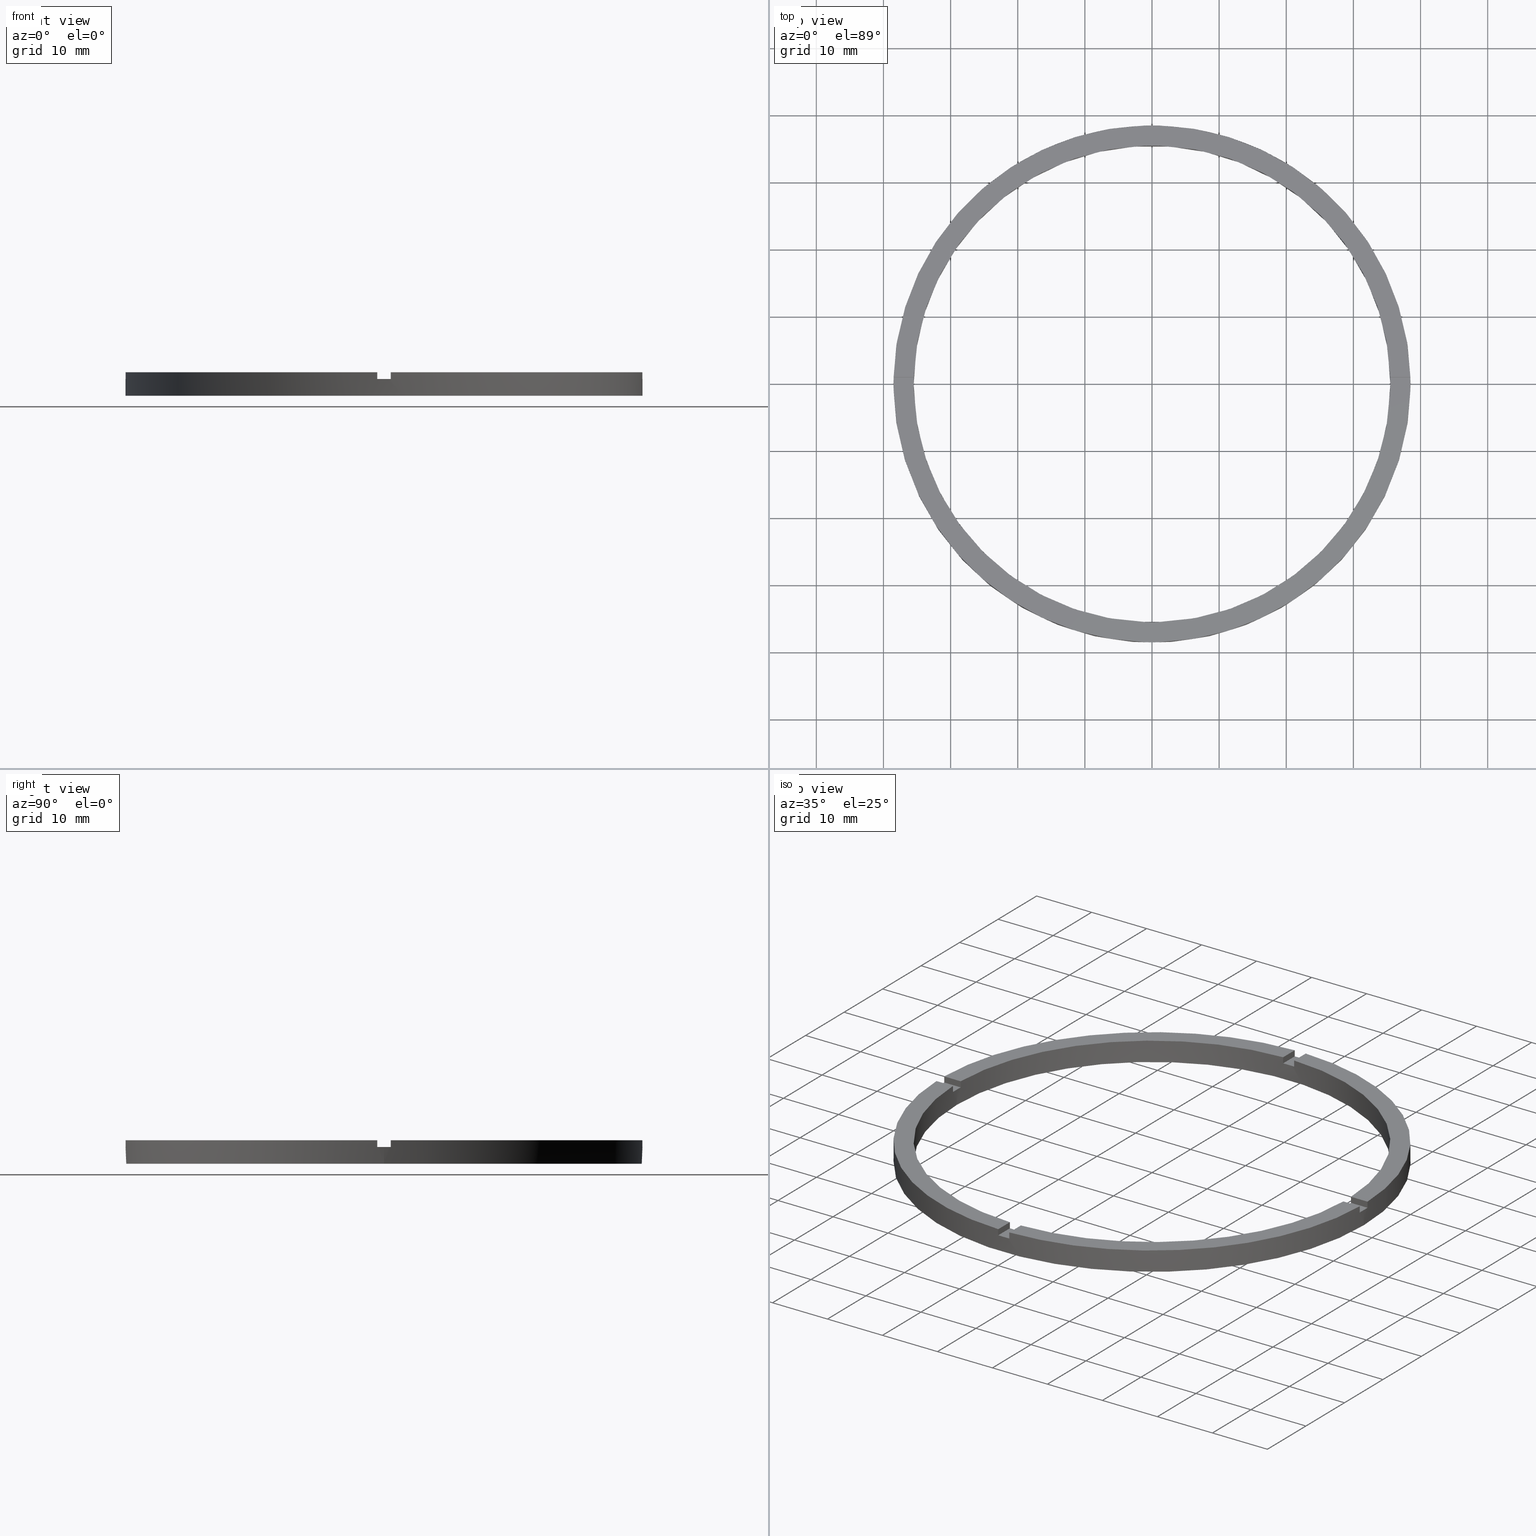
[diagram: canonical four-view strip — front | top / right | iso, engineering-drawing reading convention]
A machine part, canonical four-view strip (front | top / right | iso — engineering-drawing reading convention). The complete STEP part file that produces these views, byte-faithful:
ISO-10303-21;
HEADER;
FILE_DESCRIPTION (( 'STEP AP203' ),
    '1' );
FILE_NAME ('514159.step',
    '2024-12-26T02:43:15',
    ( 'MSI' ),
    ( '' ),
    'SwSTEP 2.0',
    'SolidWorks 2020',
    '' );
FILE_SCHEMA (( 'CONFIG_CONTROL_DESIGN' ));
ENDSEC;

DATA;
#1 = DIRECTION ( 'NONE',  ( -1.951563910473907735E-16, 1.000000000000000000, 0.000000000000000000 ) ) ;
#2 = CC_DESIGN_PERSON_AND_ORGANIZATION_ASSIGNMENT ( #101, #684, ( #614 ) ) ;
#3 = CARTESIAN_POINT ( 'NONE',  ( 0.9999999999998391287, -28.50000000000017764, 3.500000000000000000 ) ) ;
#4 = CARTESIAN_POINT ( 'NONE',  ( 0.000000000000000000, 0.000000000000000000, 0.000000000000000000 ) ) ;
#5 = CARTESIAN_POINT ( 'NONE',  ( 0.000000000000000000, 0.000000000000000000, 3.500000000000000000 ) ) ;
#6 =( NAMED_UNIT ( * ) SI_UNIT ( $, .STERADIAN. ) SOLID_ANGLE_UNIT ( ) );
#7 = CARTESIAN_POINT ( 'NONE',  ( -28.50000000000018474, 0.9999999999999740208, 3.500000000000000000 ) ) ;
#8 = UNCERTAINTY_MEASURE_WITH_UNIT (LENGTH_MEASURE( 1.000000000000000082E-05 ), #672, 'distance_accuracy_value', 'NONE');
#9 = AXIS2_PLACEMENT_3D ( 'NONE', #4, #680, #85 ) ;
#10 = CARTESIAN_POINT ( 'NONE',  ( 0.000000000000000000, 0.000000000000000000, 3.500000000000000000 ) ) ;
#11 = DIRECTION ( 'NONE',  ( -0.000000000000000000, -0.000000000000000000, -1.000000000000000000 ) ) ;
#12 = CARTESIAN_POINT ( 'NONE',  ( -1.000000000000160982, -28.50000000000017764, 3.500000000000000000 ) ) ;
#13 = AXIS2_PLACEMENT_3D ( 'NONE', #698, #729, #660 ) ;
#14 = CARTESIAN_POINT ( 'NONE',  ( -35.48591269785801217, -1.000000000000027311, 3.500000000000000000 ) ) ;
#15 = APPROVAL_ROLE ( '' ) ;
#16 = AXIS2_PLACEMENT_3D ( 'NONE', #559, #515, #681 ) ;
#17 = CARTESIAN_POINT ( 'NONE',  ( 0.000000000000000000, 0.000000000000000000, 0.000000000000000000 ) ) ;
#18 = EDGE_CURVE ( 'NONE', #485, #178, #149, .T. ) ;
#19 = DIRECTION ( 'NONE',  ( 1.000000000000000000, 1.951563910473907735E-16, -0.000000000000000000 ) ) ;
#20 = CARTESIAN_POINT ( 'NONE',  ( 0.9999999999998400169, -35.48591269785801927, 2.500000000000000000 ) ) ;
#21 = CC_DESIGN_PERSON_AND_ORGANIZATION_ASSIGNMENT ( #602, #210, ( #482 ) ) ;
#22 = VECTOR ( 'NONE', #45, 1000.000000000000000 ) ;
#23 = PRODUCT_DEFINITION_SHAPE ( 'NONE', 'NONE',  #438 ) ;
#24 = LINE ( 'NONE', #710, #50 ) ;
#25 = CARTESIAN_POINT ( 'NONE',  ( 0.000000000000000000, 0.000000000000000000, 3.500000000000000000 ) ) ;
#26 = EDGE_CURVE ( 'NONE', #741, #753, #661, .T. ) ;
#27 = LINE ( 'NONE', #12, #563 ) ;
#28 = PLANE ( 'NONE',  #13 ) ;
#29 = LINE ( 'NONE', #443, #564 ) ;
#30 = LINE ( 'NONE', #203, #31 ) ;
#31 = VECTOR ( 'NONE', #274, 1000.000000000000000 ) ;
#32 = CARTESIAN_POINT ( 'NONE',  ( 0.000000000000000000, 0.000000000000000000, 3.500000000000000000 ) ) ;
#33 = LINE ( 'NONE', #739, #334 ) ;
#34 = EDGE_CURVE ( 'NONE', #216, #406, #663, .T. ) ;
#35 = DIRECTION ( 'NONE',  ( 1.000000000000000000, 0.000000000000000000, 0.000000000000000000 ) ) ;
#36 = FACE_OUTER_BOUND ( 'NONE', #118, .T. ) ;
#37 = LINE ( 'NONE', #187, #328 ) ;
#38 = DIRECTION ( 'NONE',  ( 0.000000000000000000, 0.000000000000000000, 1.000000000000000000 ) ) ;
#39 = VECTOR ( 'NONE', #556, 1000.000000000000000 ) ;
#40 = DIRECTION ( 'NONE',  ( -1.000000000000000000, 0.000000000000000000, 0.000000000000000000 ) ) ;
#41 = LINE ( 'NONE', #655, #574 ) ;
#42 = CARTESIAN_POINT ( 'NONE',  ( -38.50000000000000000, 0.000000000000000000, 3.500000000000000000 ) ) ;
#43 = CIRCLE ( 'NONE', #615, 35.50000000000000711 ) ;
#44 = CARTESIAN_POINT ( 'NONE',  ( -35.48591269785801217, -1.000000000000027311, 3.500000000000000000 ) ) ;
#45 = DIRECTION ( 'NONE',  ( -0.000000000000000000, -1.000000000000000000, -0.000000000000000000 ) ) ;
#46 = DIRECTION ( 'NONE',  ( -0.000000000000000000, -0.000000000000000000, -1.000000000000000000 ) ) ;
#47 = FACE_BOUND ( 'NONE', #181, .T. ) ;
#48 = ADVANCED_FACE ( 'NONE', ( #153 ), #642, .F. ) ;
#49 = CYLINDRICAL_SURFACE ( 'NONE', #430, 35.50000000000000711 ) ;
#50 = VECTOR ( 'NONE', #260, 1000.000000000000000 ) ;
#51 = CIRCLE ( 'NONE', #395, 38.50000000000000000 ) ;
#52 = CARTESIAN_POINT ( 'NONE',  ( -38.48701079585163143, -1.000000000000027978, 3.500000000000000000 ) ) ;
#53 = CARTESIAN_POINT ( 'NONE',  ( 0.000000000000000000, 0.000000000000000000, 3.500000000000000000 ) ) ;
#54 = VECTOR ( 'NONE', #46, 1000.000000000000000 ) ;
#55 = LINE ( 'NONE', #624, #300 ) ;
#56 = DIRECTION ( 'NONE',  ( 1.000000000000000000, 0.000000000000000000, -0.000000000000000000 ) ) ;
#57 = AXIS2_PLACEMENT_3D ( 'NONE', #540, #270, #720 ) ;
#58 = DIRECTION ( 'NONE',  ( 0.000000000000000000, 0.000000000000000000, 1.000000000000000000 ) ) ;
#59 = CIRCLE ( 'NONE', #507, 35.50000000000000711 ) ;
#60 = CIRCLE ( 'NONE', #553, 35.50000000000000711 ) ;
#61 = FACE_OUTER_BOUND ( 'NONE', #719, .T. ) ;
#62 = VECTOR ( 'NONE', #390, 1000.000000000000000 ) ;
#63 = ADVANCED_FACE ( 'NONE', ( #130 ), #678, .T. ) ;
#64 = FACE_OUTER_BOUND ( 'NONE', #752, .T. ) ;
#65 = CARTESIAN_POINT ( 'NONE',  ( 0.000000000000000000, 0.000000000000000000, 0.000000000000000000 ) ) ;
#66 = CARTESIAN_POINT ( 'NONE',  ( 0.000000000000000000, 0.000000000000000000, 3.500000000000000000 ) ) ;
#67 = EDGE_CURVE ( 'NONE', #136, #741, #670, .T. ) ;
#68 = LINE ( 'NONE', #532, #589 ) ;
#69 = DIRECTION ( 'NONE',  ( 0.000000000000000000, 0.000000000000000000, 1.000000000000000000 ) ) ;
#70 = DIRECTION ( 'NONE',  ( -0.000000000000000000, -0.000000000000000000, -1.000000000000000000 ) ) ;
#71 = EDGE_CURVE ( 'NONE', #392, #183, #156, .T. ) ;
#72 = FACE_OUTER_BOUND ( 'NONE', #401, .T. ) ;
#73 = LINE ( 'NONE', #42, #92 ) ;
#74 = PLANE ( 'NONE',  #728 ) ;
#75 = CIRCLE ( 'NONE', #775, 38.50000000000000000 ) ;
#76 = FACE_OUTER_BOUND ( 'NONE', #704, .T. ) ;
#77 = CC_DESIGN_PERSON_AND_ORGANIZATION_ASSIGNMENT ( #91, #558, ( #438 ) ) ;
#78 = DIRECTION ( 'NONE',  ( 0.000000000000000000, 0.000000000000000000, 1.000000000000000000 ) ) ;
#79 = VECTOR ( 'NONE', #290, 1000.000000000000000 ) ;
#80 = APPROVAL_DATE_TIME ( #604, #148 ) ;
#81 = LINE ( 'NONE', #258, #616 ) ;
#82 = PERSON_AND_ORGANIZATION_ROLE ( 'creator' ) ;
#83 = LOCAL_TIME ( 10, 43, 15.00000000000000000, #599 ) ;
#84 = ADVANCED_FACE ( 'NONE', ( #421 ), #154, .T. ) ;
#85 = DIRECTION ( 'NONE',  ( 1.000000000000000000, 0.000000000000000000, -0.000000000000000000 ) ) ;
#86 = EDGE_CURVE ( 'NONE', #193, #236, #423, .T. ) ;
#87 = CIRCLE ( 'NONE', #106, 35.50000000000000711 ) ;
#88 = CIRCLE ( 'NONE', #578, 35.50000000000000711 ) ;
#89 = COORDINATED_UNIVERSAL_TIME_OFFSET ( 8, 0, .AHEAD. ) ;
#90 = AXIS2_PLACEMENT_3D ( 'NONE', #513, #519, #544 ) ;
#91 = PERSON_AND_ORGANIZATION ( #666, #357 ) ;
#92 = VECTOR ( 'NONE', #597, 1000.000000000000000 ) ;
#93 = APPROVAL_DATE_TIME ( #358, #192 ) ;
#94 = EDGE_CURVE ( 'NONE', #504, #125, #159, .T. ) ;
#95 = LINE ( 'NONE', #606, #333 ) ;
#96 = COORDINATED_UNIVERSAL_TIME_OFFSET ( 8, 0, .AHEAD. ) ;
#97 = DIRECTION ( 'NONE',  ( 0.000000000000000000, 0.000000000000000000, 1.000000000000000000 ) ) ;
#98 = PERSON_AND_ORGANIZATION ( #666, #357 ) ;
#99 = CALENDAR_DATE ( 2024, 26, 12 ) ;
#100 = DIRECTION ( 'NONE',  ( 1.000000000000000000, 0.000000000000000000, 0.000000000000000000 ) ) ;
#101 = PERSON_AND_ORGANIZATION ( #666, #357 ) ;
#102 = DIRECTION ( 'NONE',  ( 0.000000000000000000, 0.000000000000000000, 1.000000000000000000 ) ) ;
#103 = DIRECTION ( 'NONE',  ( -0.000000000000000000, -0.000000000000000000, -1.000000000000000000 ) ) ;
#104 = DIRECTION ( 'NONE',  ( 1.000000000000000000, 0.000000000000000000, 0.000000000000000000 ) ) ;
#105 = CARTESIAN_POINT ( 'NONE',  ( -28.50000000000018474, 0.9999999999999740208, 2.500000000000000000 ) ) ;
#106 = AXIS2_PLACEMENT_3D ( 'NONE', #778, #375, #501 ) ;
#107 = CARTESIAN_POINT ( 'NONE',  ( 0.9999999999998404610, -38.48701079585163853, 3.500000000000000000 ) ) ;
#108 = LINE ( 'NONE', #177, #347 ) ;
#109 = ORIENTED_EDGE ( 'NONE', *, *, #279, .F. ) ;
#110 = DIRECTION ( 'NONE',  ( -1.000000000000000000, -1.951563910473907735E-16, 0.000000000000000000 ) ) ;
#111 = CC_DESIGN_APPROVAL ( #396, ( #614 ) ) ;
#112 = VERTEX_POINT ( 'NONE', #498 ) ;
#113 = EDGE_CURVE ( 'NONE', #451, #485, #677, .T. ) ;
#114 = PLANE ( 'NONE',  #165 ) ;
#115 = DIRECTION ( 'NONE',  ( 1.000000000000000000, 0.000000000000000000, 0.000000000000000000 ) ) ;
#116 = CARTESIAN_POINT ( 'NONE',  ( 0.000000000000000000, 0.000000000000000000, 2.500000000000000000 ) ) ;
#117 = EDGE_CURVE ( 'NONE', #691, #480, #427, .T. ) ;
#118 = EDGE_LOOP ( 'NONE', ( #144, #127, #257, #766 ) ) ;
#119 = CARTESIAN_POINT ( 'NONE',  ( 38.50000000000000000, 4.714890176717309515E-15, 2.500000000000000000 ) ) ;
#120 = AXIS2_PLACEMENT_3D ( 'NONE', #32, #419, #776 ) ;
#121 = PLANE ( 'NONE',  #90 ) ;
#122 = CARTESIAN_POINT ( 'NONE',  ( -38.48701079585163143, -1.000000000000027978, 3.500000000000000000 ) ) ;
#123 = CARTESIAN_POINT ( 'NONE',  ( 0.000000000000000000, 0.000000000000000000, 0.000000000000000000 ) ) ;
#124 = ADVANCED_BREP_SHAPE_REPRESENTATION ( '514159', ( #455, #567 ), #295 ) ;
#125 = VERTEX_POINT ( 'NONE', #299 ) ;
#126 = AXIS2_PLACEMENT_3D ( 'NONE', #169, #665, #428 ) ;
#127 = ORIENTED_EDGE ( 'NONE', *, *, #366, .T. ) ;
#128 = ADVANCED_FACE ( 'NONE', ( #160 ), #473, .T. ) ;
#129 = CARTESIAN_POINT ( 'NONE',  ( 38.48701079585163853, 0.9999999999998427924, 3.500000000000000000 ) ) ;
#130 = FACE_OUTER_BOUND ( 'NONE', #376, .T. ) ;
#131 = EDGE_CURVE ( 'NONE', #691, #250, #429, .T. ) ;
#132 = DIRECTION ( 'NONE',  ( 1.000000000000000000, 0.000000000000000000, -0.000000000000000000 ) ) ;
#133 = APPLICATION_PROTOCOL_DEFINITION ( 'international standard', 'config_control_design', 1994, #505 ) ;
#134 = DIRECTION ( 'NONE',  ( 0.000000000000000000, 0.000000000000000000, 1.000000000000000000 ) ) ;
#135 = CARTESIAN_POINT ( 'NONE',  ( 0.000000000000000000, 0.000000000000000000, 2.500000000000000000 ) ) ;
#136 = VERTEX_POINT ( 'NONE', #640 ) ;
#137 =( NAMED_UNIT ( * ) PLANE_ANGLE_UNIT ( ) SI_UNIT ( $, .RADIAN. ) );
#138 = DIRECTION ( 'NONE',  ( -1.000000000000000000, 0.000000000000000000, 0.000000000000000000 ) ) ;
#139 = EDGE_CURVE ( 'NONE', #504, #226, #679, .T. ) ;
#140 = ORIENTED_EDGE ( 'NONE', *, *, #731, .T. ) ;
#141 = CARTESIAN_POINT ( 'NONE',  ( -38.48701079585163143, 0.9999999999999720224, 3.500000000000000000 ) ) ;
#142 = EDGE_CURVE ( 'NONE', #504, #216, #155, .T. ) ;
#143 = ORIENTED_EDGE ( 'NONE', *, *, #152, .F. ) ;
#144 = ORIENTED_EDGE ( 'NONE', *, *, #325, .T. ) ;
#145 = CARTESIAN_POINT ( 'NONE',  ( -1.000000000000160982, -28.50000000000017764, 2.500000000000000000 ) ) ;
#146 = VERTEX_POINT ( 'NONE', #688 ) ;
#147 = ORIENTED_EDGE ( 'NONE', *, *, #581, .F. ) ;
#148 = APPROVAL ( #716, 'δָ��' ) ;
#149 = LINE ( 'NONE', #687, #412 ) ;
#150 = AXIS2_PLACEMENT_3D ( 'NONE', #708, #487, #353 ) ;
#151 = DIRECTION ( 'NONE',  ( 0.000000000000000000, 1.000000000000000000, 0.000000000000000000 ) ) ;
#152 = EDGE_CURVE ( 'NONE', #479, #199, #332, .T. ) ;
#153 = FACE_OUTER_BOUND ( 'NONE', #371, .T. ) ;
#154 = PLANE ( 'NONE',  #372 ) ;
#155 = LINE ( 'NONE', #3, #319 ) ;
#156 = CIRCLE ( 'NONE', #180, 35.50000000000000711 ) ;
#157 = EDGE_CURVE ( 'NONE', #112, #523, #331, .T. ) ;
#158 = DIRECTION ( 'NONE',  ( -1.000000000000000000, -1.951563910473907735E-16, 0.000000000000000000 ) ) ;
#159 = CIRCLE ( 'NONE', #282, 38.50000000000000000 ) ;
#160 = FACE_OUTER_BOUND ( 'NONE', #509, .T. ) ;
#161 = AXIS2_PLACEMENT_3D ( 'NONE', #271, #782, #627 ) ;
#162 = CARTESIAN_POINT ( 'NONE',  ( -1.000000000000160094, -35.48591269785800506, 3.500000000000000000 ) ) ;
#163 = VECTOR ( 'NONE', #351, 1000.000000000000000 ) ;
#164 = DIRECTION ( 'NONE',  ( 1.000000000000000000, 0.000000000000000000, 0.000000000000000000 ) ) ;
#165 = AXIS2_PLACEMENT_3D ( 'NONE', #652, #166, #254 ) ;
#166 = DIRECTION ( 'NONE',  ( -6.505213034913025371E-17, 1.000000000000000000, 0.000000000000000000 ) ) ;
#167 = CARTESIAN_POINT ( 'NONE',  ( 38.50000000000000000, 4.714890176717309515E-15, 3.500000000000000000 ) ) ;
#168 = EDGE_CURVE ( 'NONE', #480, #484, #37, .T. ) ;
#169 = CARTESIAN_POINT ( 'NONE',  ( 0.000000000000000000, 0.000000000000000000, 3.500000000000000000 ) ) ;
#170 = DIRECTION ( 'NONE',  ( -0.000000000000000000, -0.000000000000000000, -1.000000000000000000 ) ) ;
#171 = LOCAL_TIME ( 10, 43, 15.00000000000000000, #442 ) ;
#172 = ORIENTED_EDGE ( 'NONE', *, *, #26, .F. ) ;
#173 = CARTESIAN_POINT ( 'NONE',  ( -1.000000000000159650, -38.48701079585163143, 2.500000000000000000 ) ) ;
#174 = CARTESIAN_POINT ( 'NONE',  ( 35.48591269785801927, 0.9999999999998425704, 2.500000000000000000 ) ) ;
#175 = VERTEX_POINT ( 'NONE', #310 ) ;
#176 = CARTESIAN_POINT ( 'NONE',  ( 0.000000000000000000, 0.000000000000000000, 3.500000000000000000 ) ) ;
#177 = CARTESIAN_POINT ( 'NONE',  ( 28.49999999999998934, 0.9999999999998421263, 3.500000000000000000 ) ) ;
#178 = VERTEX_POINT ( 'NONE', #174 ) ;
#179 = PERSON_AND_ORGANIZATION ( #666, #357 ) ;
#180 = AXIS2_PLACEMENT_3D ( 'NONE', #289, #468, #233 ) ;
#181 = EDGE_LOOP ( 'NONE', ( #262, #749 ) ) ;
#182 = CALENDAR_DATE ( 2024, 26, 12 ) ;
#183 = VERTEX_POINT ( 'NONE', #380 ) ;
#184 = DATE_AND_TIME ( #182, #83 ) ;
#185 = CARTESIAN_POINT ( 'NONE',  ( -38.50000000000000000, 0.000000000000000000, 2.500000000000000000 ) ) ;
#186 = EDGE_CURVE ( 'NONE', #638, #406, #41, .T. ) ;
#187 = CARTESIAN_POINT ( 'NONE',  ( -28.50000000000018474, -1.000000000000025979, 2.500000000000000000 ) ) ;
#188 = ORIENTED_EDGE ( 'NONE', *, *, #499, .T. ) ;
#189 = DIRECTION ( 'NONE',  ( 0.000000000000000000, 0.000000000000000000, 1.000000000000000000 ) ) ;
#190 = ORIENTED_EDGE ( 'NONE', *, *, #113, .T. ) ;
#191 = ADVANCED_FACE ( 'NONE', ( #569 ), #322, .F. ) ;
#192 = APPROVAL ( #551, 'δָ��' ) ;
#193 = VERTEX_POINT ( 'NONE', #674 ) ;
#194 = DIRECTION ( 'NONE',  ( 1.301042606982605074E-16, -1.000000000000000000, 0.000000000000000000 ) ) ;
#195 = DIRECTION ( 'NONE',  ( 1.000000000000000000, 0.000000000000000000, 0.000000000000000000 ) ) ;
#196 = ORIENTED_EDGE ( 'NONE', *, *, #337, .F. ) ;
#197 = PLANE ( 'NONE',  #361 ) ;
#198 = DIRECTION ( 'NONE',  ( 0.000000000000000000, 0.000000000000000000, 1.000000000000000000 ) ) ;
#199 = VERTEX_POINT ( 'NONE', #628 ) ;
#200 = ORIENTED_EDGE ( 'NONE', *, *, #211, .T. ) ;
#201 = ORIENTED_EDGE ( 'NONE', *, *, #436, .T. ) ;
#202 = DIRECTION ( 'NONE',  ( 1.000000000000000000, 0.000000000000000000, 0.000000000000000000 ) ) ;
#203 = CARTESIAN_POINT ( 'NONE',  ( -1.000000000000025313, 28.49999999999999645, 3.500000000000000000 ) ) ;
#204 = ORIENTED_EDGE ( 'NONE', *, *, #533, .F. ) ;
#205 = CARTESIAN_POINT ( 'NONE',  ( 35.48591269785800506, -1.000000000000157430, 3.500000000000000000 ) ) ;
#206 = ORIENTED_EDGE ( 'NONE', *, *, #685, .T. ) ;
#207 = AXIS2_PLACEMENT_3D ( 'NONE', #603, #648, #656 ) ;
#208 = ORIENTED_EDGE ( 'NONE', *, *, #715, .T. ) ;
#209 = EDGE_LOOP ( 'NONE', ( #143, #147 ) ) ;
#210 = PERSON_AND_ORGANIZATION_ROLE ( 'design_supplier' ) ;
#211 = EDGE_CURVE ( 'NONE', #175, #503, #30, .T. ) ;
#212 = ORIENTED_EDGE ( 'NONE', *, *, #307, .F. ) ;
#213 = ORIENTED_EDGE ( 'NONE', *, *, #67, .T. ) ;
#214 = ORIENTED_EDGE ( 'NONE', *, *, #527, .F. ) ;
#215 = ORIENTED_EDGE ( 'NONE', *, *, #499, .F. ) ;
#216 = VERTEX_POINT ( 'NONE', #385 ) ;
#217 = ORIENTED_EDGE ( 'NONE', *, *, #86, .T. ) ;
#218 = AXIS2_PLACEMENT_3D ( 'NONE', #176, #591, #303 ) ;
#219 = CARTESIAN_POINT ( 'NONE',  ( -35.50000000000000711, 0.000000000000000000, 0.000000000000000000 ) ) ;
#220 = ORIENTED_EDGE ( 'NONE', *, *, #646, .T. ) ;
#221 = VERTEX_POINT ( 'NONE', #278 ) ;
#222 = ORIENTED_EDGE ( 'NONE', *, *, #284, .T. ) ;
#223 = ORIENTED_EDGE ( 'NONE', *, *, #139, .T. ) ;
#224 = DIRECTION ( 'NONE',  ( 0.000000000000000000, 0.000000000000000000, 1.000000000000000000 ) ) ;
#225 = ORIENTED_EDGE ( 'NONE', *, *, #397, .T. ) ;
#226 = VERTEX_POINT ( 'NONE', #667 ) ;
#227 = EDGE_CURVE ( 'NONE', #503, #398, #43, .T. ) ;
#228 = VERTEX_POINT ( 'NONE', #286 ) ;
#229 = CLOSED_SHELL ( 'NONE', ( #510, #434, #662, #128, #762, #377, #280, #63, #191, #724, #550, #265, #608, #311, #518, #384, #543, #84, #736, #48, #320 ) ) ;
#230 = ORIENTED_EDGE ( 'NONE', *, *, #157, .F. ) ;
#231 = EDGE_CURVE ( 'NONE', #392, #643, #580, .T. ) ;
#232 = ORIENTED_EDGE ( 'NONE', *, *, #594, .F. ) ;
#233 = DIRECTION ( 'NONE',  ( 1.000000000000000000, 0.000000000000000000, 0.000000000000000000 ) ) ;
#234 = EDGE_LOOP ( 'NONE', ( #464, #750, #735, #774 ) ) ;
#235 = ORIENTED_EDGE ( 'NONE', *, *, #649, .F. ) ;
#236 = VERTEX_POINT ( 'NONE', #219 ) ;
#237 = DIRECTION ( 'NONE',  ( 1.000000000000000000, 1.951563910473907735E-16, -0.000000000000000000 ) ) ;
#238 = ORIENTED_EDGE ( 'NONE', *, *, #780, .F. ) ;
#239 = CARTESIAN_POINT ( 'NONE',  ( 0.9999999999999746869, 28.49999999999999645, 2.500000000000000000 ) ) ;
#240 = VERTEX_POINT ( 'NONE', #765 ) ;
#241 = CARTESIAN_POINT ( 'NONE',  ( 0.000000000000000000, 0.000000000000000000, 2.500000000000000000 ) ) ;
#242 = EDGE_CURVE ( 'NONE', #221, #236, #60, .T. ) ;
#243 = ORIENTED_EDGE ( 'NONE', *, *, #685, .F. ) ;
#244 = CARTESIAN_POINT ( 'NONE',  ( -28.50000000000018474, -1.000000000000025979, 3.500000000000000000 ) ) ;
#245 = EDGE_LOOP ( 'NONE', ( #410, #222, #756, #709 ) ) ;
#246 = ORIENTED_EDGE ( 'NONE', *, *, #18, .T. ) ;
#247 = CARTESIAN_POINT ( 'NONE',  ( -35.48591269785801217, -1.000000000000027311, 2.500000000000000000 ) ) ;
#248 = ORIENTED_EDGE ( 'NONE', *, *, #780, .T. ) ;
#249 = EDGE_CURVE ( 'NONE', #706, #457, #571, .T. ) ;
#250 = VERTEX_POINT ( 'NONE', #44 ) ;
#251 = ORIENTED_EDGE ( 'NONE', *, *, #566, .T. ) ;
#252 = DIRECTION ( 'NONE',  ( 0.000000000000000000, 0.000000000000000000, -1.000000000000000000 ) ) ;
#253 = ORIENTED_EDGE ( 'NONE', *, *, #249, .F. ) ;
#254 = DIRECTION ( 'NONE',  ( -1.000000000000000000, -6.505213034913025371E-17, 0.000000000000000000 ) ) ;
#255 = CARTESIAN_POINT ( 'NONE',  ( 0.000000000000000000, 0.000000000000000000, 2.500000000000000000 ) ) ;
#256 = VERTEX_POINT ( 'NONE', #521 ) ;
#257 = ORIENTED_EDGE ( 'NONE', *, *, #71, .F. ) ;
#258 = CARTESIAN_POINT ( 'NONE',  ( -1.000000000000160982, -28.50000000000017764, 2.500000000000000000 ) ) ;
#259 = ORIENTED_EDGE ( 'NONE', *, *, #702, .F. ) ;
#260 = DIRECTION ( 'NONE',  ( 0.000000000000000000, 0.000000000000000000, 1.000000000000000000 ) ) ;
#261 = CARTESIAN_POINT ( 'NONE',  ( 0.000000000000000000, 0.000000000000000000, 2.500000000000000000 ) ) ;
#262 = ORIENTED_EDGE ( 'NONE', *, *, #545, .T. ) ;
#263 = DIRECTION ( 'NONE',  ( 0.000000000000000000, 0.000000000000000000, 1.000000000000000000 ) ) ;
#264 = DIRECTION ( 'NONE',  ( 1.000000000000000000, 0.000000000000000000, 0.000000000000000000 ) ) ;
#265 = ADVANCED_FACE ( 'NONE', ( #560 ), #747, .T. ) ;
#266 = AXIS2_PLACEMENT_3D ( 'NONE', #777, #370, #552 ) ;
#267 = DIRECTION ( 'NONE',  ( 0.000000000000000000, 0.000000000000000000, 1.000000000000000000 ) ) ;
#268 = DIRECTION ( 'NONE',  ( -0.000000000000000000, -0.000000000000000000, -1.000000000000000000 ) ) ;
#269 = CARTESIAN_POINT ( 'NONE',  ( 0.000000000000000000, 0.000000000000000000, 3.500000000000000000 ) ) ;
#270 = DIRECTION ( 'NONE',  ( 0.000000000000000000, -0.000000000000000000, 1.000000000000000000 ) ) ;
#271 = CARTESIAN_POINT ( 'NONE',  ( 0.000000000000000000, 0.000000000000000000, 2.500000000000000000 ) ) ;
#272 = DIRECTION ( 'NONE',  ( -0.000000000000000000, -0.000000000000000000, -1.000000000000000000 ) ) ;
#273 = EDGE_CURVE ( 'NONE', #406, #125, #577, .T. ) ;
#274 = DIRECTION ( 'NONE',  ( -0.000000000000000000, -1.000000000000000000, -0.000000000000000000 ) ) ;
#275 = CARTESIAN_POINT ( 'NONE',  ( -35.48591269785801217, 0.9999999999999726885, 3.500000000000000000 ) ) ;
#276 = CC_DESIGN_PERSON_AND_ORGANIZATION_ASSIGNMENT ( #360, #492, ( #445 ) ) ;
#277 = DIRECTION ( 'NONE',  ( 1.000000000000000000, 0.000000000000000000, 0.000000000000000000 ) ) ;
#278 = CARTESIAN_POINT ( 'NONE',  ( 35.50000000000000711, 4.347496136973104070E-15, 0.000000000000000000 ) ) ;
#279 = EDGE_CURVE ( 'NONE', #250, #467, #315, .T. ) ;
#280 = ADVANCED_FACE ( 'NONE', ( #313, #47 ), #668, .F. ) ;
#281 = CARTESIAN_POINT ( 'NONE',  ( 0.000000000000000000, 0.000000000000000000, 2.500000000000000000 ) ) ;
#282 = AXIS2_PLACEMENT_3D ( 'NONE', #53, #570, #621 ) ;
#283 = AXIS2_PLACEMENT_3D ( 'NONE', #116, #745, #277 ) ;
#284 = EDGE_CURVE ( 'NONE', #250, #484, #308, .T. ) ;
#285 = DIRECTION ( 'NONE',  ( 1.000000000000000000, 0.000000000000000000, -0.000000000000000000 ) ) ;
#286 = CARTESIAN_POINT ( 'NONE',  ( 35.50000000000000711, 4.347496136973104070E-15, 2.500000000000000000 ) ) ;
#287 = CARTESIAN_POINT ( 'NONE',  ( 0.000000000000000000, 0.000000000000000000, 2.500000000000000000 ) ) ;
#288 = EDGE_CURVE ( 'NONE', #226, #502, #323, .T. ) ;
#289 = CARTESIAN_POINT ( 'NONE',  ( 0.000000000000000000, 0.000000000000000000, 2.500000000000000000 ) ) ;
#290 = DIRECTION ( 'NONE',  ( -0.000000000000000000, -0.000000000000000000, -1.000000000000000000 ) ) ;
#291 = CC_DESIGN_APPROVAL ( #148, ( #482 ) ) ;
#292 = DIRECTION ( 'NONE',  ( 0.000000000000000000, 0.000000000000000000, 1.000000000000000000 ) ) ;
#293 = DIRECTION ( 'NONE',  ( 1.000000000000000000, 0.000000000000000000, 0.000000000000000000 ) ) ;
#294 = EDGE_CURVE ( 'NONE', #503, #183, #33, .T. ) ;
#295 =( GEOMETRIC_REPRESENTATION_CONTEXT ( 3 ) GLOBAL_UNCERTAINTY_ASSIGNED_CONTEXT ( ( #8 ) ) GLOBAL_UNIT_ASSIGNED_CONTEXT ( ( #672, #137, #6 ) ) REPRESENTATION_CONTEXT ( 'NONE', 'WORKASPACE' ) );
#296 = CARTESIAN_POINT ( 'NONE',  ( -38.50000000000000000, 0.000000000000000000, 0.000000000000000000 ) ) ;
#297 = AXIS2_PLACEMENT_3D ( 'NONE', #529, #97, #104 ) ;
#298 = DIRECTION ( 'NONE',  ( 0.000000000000000000, 0.000000000000000000, 1.000000000000000000 ) ) ;
#299 = CARTESIAN_POINT ( 'NONE',  ( 38.48701079585163143, -1.000000000000157208, 3.500000000000000000 ) ) ;
#300 = VECTOR ( 'NONE', #367, 1000.000000000000000 ) ;
#301 = AXIS2_PLACEMENT_3D ( 'NONE', #105, #1, #110 ) ;
#302 = DIRECTION ( 'NONE',  ( 1.000000000000000000, 0.000000000000000000, 0.000000000000000000 ) ) ;
#303 = DIRECTION ( 'NONE',  ( 1.000000000000000000, 0.000000000000000000, -0.000000000000000000 ) ) ;
#304 = LINE ( 'NONE', #477, #306 ) ;
#305 = DIRECTION ( 'NONE',  ( -1.000000000000000000, -6.505213034913025371E-17, -0.000000000000000000 ) ) ;
#306 = VECTOR ( 'NONE', #585, 1000.000000000000000 ) ;
#307 = EDGE_CURVE ( 'NONE', #392, #256, #336, .T. ) ;
#308 = LINE ( 'NONE', #14, #39 ) ;
#309 = CARTESIAN_POINT ( 'NONE',  ( 0.000000000000000000, 0.000000000000000000, 3.500000000000000000 ) ) ;
#310 = CARTESIAN_POINT ( 'NONE',  ( -1.000000000000025313, 38.48701079585163143, 3.500000000000000000 ) ) ;
#311 = ADVANCED_FACE ( 'NONE', ( #576 ), #197, .F. ) ;
#312 = CARTESIAN_POINT ( 'NONE',  ( 35.48591269785801927, 0.9999999999998425704, 3.500000000000000000 ) ) ;
#313 = FACE_OUTER_BOUND ( 'NONE', #209, .T. ) ;
#314 = AXIS2_PLACEMENT_3D ( 'NONE', #261, #298, #164 ) ;
#315 = CIRCLE ( 'NONE', #528, 35.50000000000000711 ) ;
#316 = DIRECTION ( 'NONE',  ( 1.951563910473907735E-16, -1.000000000000000000, 0.000000000000000000 ) ) ;
#317 = CIRCLE ( 'NONE', #57, 38.50000000000000000 ) ;
#318 = CARTESIAN_POINT ( 'NONE',  ( -1.000000000000025313, 28.49999999999999645, 2.500000000000000000 ) ) ;
#319 = VECTOR ( 'NONE', #407, 1000.000000000000000 ) ;
#320 = ADVANCED_FACE ( 'NONE', ( #36 ), #759, .T. ) ;
#321 = EDGE_CURVE ( 'NONE', #643, #146, #24, .T. ) ;
#322 = CYLINDRICAL_SURFACE ( 'NONE', #641, 35.50000000000000711 ) ;
#323 = LINE ( 'NONE', #393, #62 ) ;
#324 = CARTESIAN_POINT ( 'NONE',  ( -1.000000000000025313, 38.48701079585163143, 2.500000000000000000 ) ) ;
#325 = EDGE_CURVE ( 'NONE', #643, #760, #317, .T. ) ;
#326 = VECTOR ( 'NONE', #382, 1000.000000000000000 ) ;
#327 = DIRECTION ( 'NONE',  ( 0.000000000000000000, 0.000000000000000000, 1.000000000000000000 ) ) ;
#328 = VECTOR ( 'NONE', #19, 1000.000000000000000 ) ;
#329 = VECTOR ( 'NONE', #547, 1000.000000000000000 ) ;
#330 = PRODUCT_RELATED_PRODUCT_CATEGORY ( 'detail', '', ( #445 ) ) ;
#331 = CIRCLE ( 'NONE', #542, 38.50000000000000000 ) ;
#332 = CIRCLE ( 'NONE', #405, 38.50000000000000000 ) ;
#333 = VECTOR ( 'NONE', #272, 1000.000000000000000 ) ;
#334 = VECTOR ( 'NONE', #11, 1000.000000000000000 ) ;
#335 = LINE ( 'NONE', #318, #22 ) ;
#336 = LINE ( 'NONE', #441, #573 ) ;
#337 = EDGE_CURVE ( 'NONE', #523, #485, #51, .T. ) ;
#338 = DIRECTION ( 'NONE',  ( 0.000000000000000000, 0.000000000000000000, 1.000000000000000000 ) ) ;
#339 = LINE ( 'NONE', #555, #610 ) ;
#340 = CYLINDRICAL_SURFACE ( 'NONE', #16, 38.50000000000000000 ) ;
#341 = AXIS2_PLACEMENT_3D ( 'NONE', #10, #263, #734 ) ;
#342 = LINE ( 'NONE', #312, #356 ) ;
#343 = EDGE_CURVE ( 'NONE', #256, #146, #55, .T. ) ;
#344 = CIRCLE ( 'NONE', #755, 35.50000000000000711 ) ;
#345 = CIRCLE ( 'NONE', #283, 35.50000000000000711 ) ;
#346 = VECTOR ( 'NONE', #189, 1000.000000000000000 ) ;
#347 = VECTOR ( 'NONE', #305, 1000.000000000000000 ) ;
#348 = AXIS2_PLACEMENT_3D ( 'NONE', #613, #494, #690 ) ;
#349 = LINE ( 'NONE', #7, #607 ) ;
#350 = LOCAL_TIME ( 10, 43, 15.00000000000000000, #96 ) ;
#351 = DIRECTION ( 'NONE',  ( -0.000000000000000000, -0.000000000000000000, -1.000000000000000000 ) ) ;
#352 = FACE_OUTER_BOUND ( 'NONE', #506, .T. ) ;
#353 = DIRECTION ( 'NONE',  ( -1.000000000000000000, 0.000000000000000000, 0.000000000000000000 ) ) ;
#354 = LOCAL_TIME ( 10, 43, 15.00000000000000000, #89 ) ;
#355 = FACE_OUTER_BOUND ( 'NONE', #234, .T. ) ;
#356 = VECTOR ( 'NONE', #70, 1000.000000000000000 ) ;
#357 = ORGANIZATION ( 'δָ��', 'δָ��', '' ) ;
#358 = DATE_AND_TIME ( #612, #354 ) ;
#359 = LINE ( 'NONE', #167, #54 ) ;
#360 = PERSON_AND_ORGANIZATION ( #666, #357 ) ;
#361 = AXIS2_PLACEMENT_3D ( 'NONE', #145, #525, #562 ) ;
#362 = CIRCLE ( 'NONE', #348, 35.50000000000000711 ) ;
#363 = CALENDAR_DATE ( 2024, 26, 12 ) ;
#364 = APPROVAL_PERSON_ORGANIZATION ( #98, #148, #524 ) ;
#365 = PERSON_AND_ORGANIZATION ( #666, #357 ) ;
#366 = EDGE_CURVE ( 'NONE', #760, #183, #335, .T. ) ;
#367 = DIRECTION ( 'NONE',  ( 0.000000000000000000, 1.000000000000000000, 0.000000000000000000 ) ) ;
#368 = DIRECTION ( 'NONE',  ( -0.000000000000000000, 0.000000000000000000, 1.000000000000000000 ) ) ;
#369 = MECHANICAL_CONTEXT ( 'NONE', #389, 'mechanical' ) ;
#370 = DIRECTION ( 'NONE',  ( 0.000000000000000000, -0.000000000000000000, 1.000000000000000000 ) ) ;
#371 = EDGE_LOOP ( 'NONE', ( #746, #707, #514, #657 ) ) ;
#372 = AXIS2_PLACEMENT_3D ( 'NONE', #287, #224, #285 ) ;
#373 = ORIENTED_EDGE ( 'NONE', *, *, #343, .F. ) ;
#374 = PLANE ( 'NONE',  #218 ) ;
#375 = DIRECTION ( 'NONE',  ( -0.000000000000000000, 0.000000000000000000, 1.000000000000000000 ) ) ;
#377 = ADVANCED_FACE ( 'NONE', ( #582 ), #374, .T. ) ;
#376 = EDGE_LOOP ( 'NONE', ( #493, #230, #471, #520, #223, #751, #645, #489, #696, #472, #733, #700 ) ) ;
#378 = EDGE_CURVE ( 'NONE', #638, #112, #304, .T. ) ;
#379 = DIRECTION ( 'NONE',  ( 1.000000000000000000, 0.000000000000000000, 0.000000000000000000 ) ) ;
#380 = CARTESIAN_POINT ( 'NONE',  ( -1.000000000000025313, 35.48591269785801217, 2.500000000000000000 ) ) ;
#381 = ORIENTED_EDGE ( 'NONE', *, *, #594, .T. ) ;
#382 = DIRECTION ( 'NONE',  ( 0.000000000000000000, 0.000000000000000000, 1.000000000000000000 ) ) ;
#383 = CARTESIAN_POINT ( 'NONE',  ( 0.9999999999999746869, 38.48701079585163143, 2.500000000000000000 ) ) ;
#384 = ADVANCED_FACE ( 'NONE', ( #561 ), #114, .F. ) ;
#385 = CARTESIAN_POINT ( 'NONE',  ( 0.9999999999998400169, -35.48591269785801927, 3.500000000000000000 ) ) ;
#386 = ORIENTED_EDGE ( 'NONE', *, *, #279, .T. ) ;
#387 = CARTESIAN_POINT ( 'NONE',  ( 0.000000000000000000, 0.000000000000000000, 3.500000000000000000 ) ) ;
#388 = ORIENTED_EDGE ( 'NONE', *, *, #94, .T. ) ;
#389 = APPLICATION_CONTEXT ( 'configuration controlled 3d designs of mechanical parts and assemblies' ) ;
#390 = DIRECTION ( 'NONE',  ( -1.301042606982605074E-16, 1.000000000000000000, -0.000000000000000000 ) ) ;
#391 = CARTESIAN_POINT ( 'NONE',  ( -35.48591269785801217, 0.9999999999999726885, 3.500000000000000000 ) ) ;
#392 = VERTEX_POINT ( 'NONE', #440 ) ;
#393 = CARTESIAN_POINT ( 'NONE',  ( 0.9999999999998391287, -28.50000000000017764, 2.500000000000000000 ) ) ;
#394 = DESIGN_CONTEXT ( 'detailed design', #505, 'design' ) ;
#395 = AXIS2_PLACEMENT_3D ( 'NONE', #781, #548, #536 ) ;
#396 = APPROVAL ( #757, 'δָ��' ) ;
#397 = EDGE_CURVE ( 'NONE', #467, #457, #27, .T. ) ;
#398 = VERTEX_POINT ( 'NONE', #391 ) ;
#399 = ORIENTED_EDGE ( 'NONE', *, *, #273, .T. ) ;
#400 = CARTESIAN_POINT ( 'NONE',  ( 0.9999999999999746869, 28.49999999999999645, 2.500000000000000000 ) ) ;
#401 = EDGE_LOOP ( 'NONE', ( #381, #458, #459, #703, #453, #764, #386, #238, #740, #767, #637, #463 ) ) ;
#402 = ORIENTED_EDGE ( 'NONE', *, *, #337, .T. ) ;
#403 = CARTESIAN_POINT ( 'NONE',  ( -35.50000000000000711, 0.000000000000000000, 3.500000000000000000 ) ) ;
#404 = ORIENTED_EDGE ( 'NONE', *, *, #476, .T. ) ;
#405 = AXIS2_PLACEMENT_3D ( 'NONE', #768, #102, #609 ) ;
#406 = VERTEX_POINT ( 'NONE', #205 ) ;
#407 = DIRECTION ( 'NONE',  ( -1.301042606982605074E-16, 1.000000000000000000, -0.000000000000000000 ) ) ;
#408 = ORIENTED_EDGE ( 'NONE', *, *, #18, .F. ) ;
#409 = EDGE_CURVE ( 'NONE', #741, #452, #29, .T. ) ;
#410 = ORIENTED_EDGE ( 'NONE', *, *, #131, .T. ) ;
#411 = CARTESIAN_POINT ( 'NONE',  ( 0.000000000000000000, 0.000000000000000000, 2.500000000000000000 ) ) ;
#412 = VECTOR ( 'NONE', #530, 1000.000000000000000 ) ;
#413 = AXIS2_PLACEMENT_3D ( 'NONE', #123, #420, #264 ) ;
#414 = DIRECTION ( 'NONE',  ( 1.000000000000000000, 0.000000000000000000, 0.000000000000000000 ) ) ;
#415 = ORIENTED_EDGE ( 'NONE', *, *, #227, .T. ) ;
#416 = EDGE_CURVE ( 'NONE', #228, #221, #593, .T. ) ;
#417 = EDGE_LOOP ( 'NONE', ( #483, #220, #744, #259, #215, #213 ) ) ;
#418 = PLANE ( 'NONE',  #301 ) ;
#419 = DIRECTION ( 'NONE',  ( 0.000000000000000000, 0.000000000000000000, 1.000000000000000000 ) ) ;
#420 = DIRECTION ( 'NONE',  ( 0.000000000000000000, 0.000000000000000000, 1.000000000000000000 ) ) ;
#421 = FACE_OUTER_BOUND ( 'NONE', #769, .T. ) ;
#422 = DIRECTION ( 'NONE',  ( 0.000000000000000000, 0.000000000000000000, 1.000000000000000000 ) ) ;
#423 = LINE ( 'NONE', #403, #675 ) ;
#424 = VECTOR ( 'NONE', #783, 1000.000000000000000 ) ;
#425 = PLANE ( 'NONE',  #207 ) ;
#426 = VECTOR ( 'NONE', #237, 1000.000000000000000 ) ;
#427 = LINE ( 'NONE', #122, #682 ) ;
#428 = DIRECTION ( 'NONE',  ( 1.000000000000000000, 0.000000000000000000, 0.000000000000000000 ) ) ;
#429 = LINE ( 'NONE', #244, #426 ) ;
#430 = AXIS2_PLACEMENT_3D ( 'NONE', #644, #170, #40 ) ;
#431 = CARTESIAN_POINT ( 'NONE',  ( 0.000000000000000000, 0.000000000000000000, 3.500000000000000000 ) ) ;
#432 = CC_DESIGN_DATE_AND_TIME_ASSIGNMENT ( #184, #447, ( #614 ) ) ;
#433 = CARTESIAN_POINT ( 'NONE',  ( -38.48701079585163143, 0.9999999999999720224, 2.500000000000000000 ) ) ;
#434 = ADVANCED_FACE ( 'NONE', ( #76 ), #340, .T. ) ;
#435 = DIRECTION ( 'NONE',  ( 1.000000000000000000, 0.000000000000000000, 0.000000000000000000 ) ) ;
#436 = EDGE_CURVE ( 'NONE', #691, #457, #587, .T. ) ;
#437 = PLANE ( 'NONE',  #341 ) ;
#438 = PRODUCT_DEFINITION ( 'δ֪', '', #482, #394 ) ;
#439 = CARTESIAN_POINT ( 'NONE',  ( 28.49999999999998934, -1.000000000000157874, 3.500000000000000000 ) ) ;
#440 = CARTESIAN_POINT ( 'NONE',  ( 0.9999999999999746869, 35.48591269785801217, 2.500000000000000000 ) ) ;
#441 = CARTESIAN_POINT ( 'NONE',  ( 0.9999999999999746869, 35.48591269785801217, 3.500000000000000000 ) ) ;
#442 = COORDINATED_UNIVERSAL_TIME_OFFSET ( 8, 0, .AHEAD. ) ;
#443 = CARTESIAN_POINT ( 'NONE',  ( -38.48701079585163143, 0.9999999999999720224, 3.500000000000000000 ) ) ;
#444 = EDGE_LOOP ( 'NONE', ( #500, #511, #399, #758 ) ) ;
#445 = PRODUCT ( '514159', '514159', '', ( #369 ) ) ;
#446 = CALENDAR_DATE ( 2024, 26, 12 ) ;
#447 = DATE_TIME_ROLE ( 'classification_date' ) ;
#448 = EDGE_LOOP ( 'NONE', ( #771, #659, #481, #516, #212, #491, #475, #415, #235, #188, #217, #454 ) ) ;
#449 = DATE_AND_TIME ( #446, #171 ) ;
#450 = AXIS2_PLACEMENT_3D ( 'NONE', #309, #38, #202 ) ;
#451 = VERTEX_POINT ( 'NONE', #748 ) ;
#452 = VERTEX_POINT ( 'NONE', #141 ) ;
#453 = ORIENTED_EDGE ( 'NONE', *, *, #702, .T. ) ;
#454 = ORIENTED_EDGE ( 'NONE', *, *, #242, .F. ) ;
#455 = MANIFOLD_SOLID_BREP ( '�г�-����1', #229 ) ;
#456 = CARTESIAN_POINT ( 'NONE',  ( -1.000000000000159650, -38.48701079585163143, 3.500000000000000000 ) ) ;
#457 = VERTEX_POINT ( 'NONE', #721 ) ;
#458 = ORIENTED_EDGE ( 'NONE', *, *, #416, .T. ) ;
#459 = ORIENTED_EDGE ( 'NONE', *, *, #545, .F. ) ;
#460 = ORIENTED_EDGE ( 'NONE', *, *, #157, .T. ) ;
#461 = ORIENTED_EDGE ( 'NONE', *, *, #397, .F. ) ;
#462 = EDGE_CURVE ( 'NONE', #112, #125, #68, .T. ) ;
#463 = ORIENTED_EDGE ( 'NONE', *, *, #186, .F. ) ;
#464 = ORIENTED_EDGE ( 'NONE', *, *, #67, .F. ) ;
#465 = ORIENTED_EDGE ( 'NONE', *, *, #535, .F. ) ;
#466 = ORIENTED_EDGE ( 'NONE', *, *, #325, .F. ) ;
#467 = VERTEX_POINT ( 'NONE', #162 ) ;
#468 = DIRECTION ( 'NONE',  ( 0.000000000000000000, -0.000000000000000000, 1.000000000000000000 ) ) ;
#469 = ORIENTED_EDGE ( 'NONE', *, *, #366, .F. ) ;
#470 = CARTESIAN_POINT ( 'NONE',  ( -1.000000000000025313, 35.48591269785801217, 3.500000000000000000 ) ) ;
#471 = ORIENTED_EDGE ( 'NONE', *, *, #462, .T. ) ;
#472 = ORIENTED_EDGE ( 'NONE', *, *, #646, .F. ) ;
#473 = PLANE ( 'NONE',  #717 ) ;
#474 = ORIENTED_EDGE ( 'NONE', *, *, #476, .F. ) ;
#475 = ORIENTED_EDGE ( 'NONE', *, *, #294, .F. ) ;
#476 = EDGE_CURVE ( 'NONE', #451, #240, #108, .T. ) ;
#477 = CARTESIAN_POINT ( 'NONE',  ( 28.49999999999998934, -1.000000000000157874, 2.500000000000000000 ) ) ;
#478 = ORIENTED_EDGE ( 'NONE', *, *, #139, .F. ) ;
#479 = VERTEX_POINT ( 'NONE', #296 ) ;
#480 = VERTEX_POINT ( 'NONE', #592 ) ;
#481 = ORIENTED_EDGE ( 'NONE', *, *, #635, .F. ) ;
#482 = PRODUCT_DEFINITION_FORMATION_WITH_SPECIFIED_SOURCE ( '�κ�', '', #445, .NOT_KNOWN. ) ;
#483 = ORIENTED_EDGE ( 'NONE', *, *, #26, .T. ) ;
#484 = VERTEX_POINT ( 'NONE', #247 ) ;
#485 = VERTEX_POINT ( 'NONE', #586 ) ;
#486 = ORIENTED_EDGE ( 'NONE', *, *, #635, .T. ) ;
#487 = DIRECTION ( 'NONE',  ( -0.000000000000000000, -0.000000000000000000, -1.000000000000000000 ) ) ;
#488 = PLANE ( 'NONE',  #633 ) ;
#489 = ORIENTED_EDGE ( 'NONE', *, *, #436, .F. ) ;
#490 = EDGE_LOOP ( 'NONE', ( #200, #694, #469, #658 ) ) ;
#491 = ORIENTED_EDGE ( 'NONE', *, *, #71, .T. ) ;
#492 = PERSON_AND_ORGANIZATION_ROLE ( 'design_owner' ) ;
#493 = ORIENTED_EDGE ( 'NONE', *, *, #566, .F. ) ;
#494 = DIRECTION ( 'NONE',  ( 0.000000000000000000, 0.000000000000000000, 1.000000000000000000 ) ) ;
#495 = ORIENTED_EDGE ( 'NONE', *, *, #227, .F. ) ;
#496 = ORIENTED_EDGE ( 'NONE', *, *, #273, .F. ) ;
#497 = AXIS2_PLACEMENT_3D ( 'NONE', #5, #58, #132 ) ;
#498 = CARTESIAN_POINT ( 'NONE',  ( 38.48701079585163143, -1.000000000000157208, 2.500000000000000000 ) ) ;
#499 = EDGE_CURVE ( 'NONE', #136, #193, #59, .T. ) ;
#500 = ORIENTED_EDGE ( 'NONE', *, *, #378, .F. ) ;
#501 = DIRECTION ( 'NONE',  ( 1.000000000000000000, 0.000000000000000000, 0.000000000000000000 ) ) ;
#502 = VERTEX_POINT ( 'NONE', #20 ) ;
#503 = VERTEX_POINT ( 'NONE', #470 ) ;
#504 = VERTEX_POINT ( 'NONE', #653 ) ;
#505 = APPLICATION_CONTEXT ( 'configuration controlled 3d designs of mechanical parts and assemblies' ) ;
#506 = EDGE_LOOP ( 'NONE', ( #693, #770, #204, #140 ) ) ;
#507 = AXIS2_PLACEMENT_3D ( 'NONE', #241, #773, #115 ) ;
#508 = DIRECTION ( 'NONE',  ( -1.000000000000000000, -1.951563910473907735E-16, 0.000000000000000000 ) ) ;
#509 = EDGE_LOOP ( 'NONE', ( #373, #465, #474, #714 ) ) ;
#510 = ADVANCED_FACE ( 'NONE', ( #72 ), #49, .F. ) ;
#511 = ORIENTED_EDGE ( 'NONE', *, *, #186, .T. ) ;
#512 = ORIENTED_EDGE ( 'NONE', *, *, #731, .F. ) ;
#513 = CARTESIAN_POINT ( 'NONE',  ( -1.000000000000025313, 28.49999999999999645, 2.500000000000000000 ) ) ;
#514 = ORIENTED_EDGE ( 'NONE', *, *, #343, .T. ) ;
#515 = DIRECTION ( 'NONE',  ( -0.000000000000000000, -0.000000000000000000, -1.000000000000000000 ) ) ;
#516 = ORIENTED_EDGE ( 'NONE', *, *, #535, .T. ) ;
#517 = ORIENTED_EDGE ( 'NONE', *, *, #142, .T. ) ;
#518 = ADVANCED_FACE ( 'NONE', ( #352 ), #488, .T. ) ;
#519 = DIRECTION ( 'NONE',  ( -1.000000000000000000, 0.000000000000000000, 0.000000000000000000 ) ) ;
#520 = ORIENTED_EDGE ( 'NONE', *, *, #94, .F. ) ;
#521 = CARTESIAN_POINT ( 'NONE',  ( 0.9999999999999746869, 35.48591269785801217, 3.500000000000000000 ) ) ;
#522 = CARTESIAN_POINT ( 'NONE',  ( 35.50000000000000711, 4.347496136973104070E-15, 3.500000000000000000 ) ) ;
#523 = VERTEX_POINT ( 'NONE', #119 ) ;
#524 = APPROVAL_ROLE ( '' ) ;
#525 = DIRECTION ( 'NONE',  ( -1.000000000000000000, -1.301042606982605074E-16, 0.000000000000000000 ) ) ;
#526 = EDGE_CURVE ( 'NONE', #175, #760, #584, .T. ) ;
#527 = EDGE_CURVE ( 'NONE', #228, #178, #583, .T. ) ;
#528 = AXIS2_PLACEMENT_3D ( 'NONE', #269, #611, #302 ) ;
#529 = CARTESIAN_POINT ( 'NONE',  ( 0.000000000000000000, 0.000000000000000000, 2.500000000000000000 ) ) ;
#530 = DIRECTION ( 'NONE',  ( -1.000000000000000000, -6.505213034913025371E-17, -0.000000000000000000 ) ) ;
#531 = DIRECTION ( 'NONE',  ( 0.000000000000000000, 0.000000000000000000, 1.000000000000000000 ) ) ;
#532 = CARTESIAN_POINT ( 'NONE',  ( 38.48701079585163143, -1.000000000000157208, 3.500000000000000000 ) ) ;
#533 = EDGE_CURVE ( 'NONE', #699, #502, #87, .T. ) ;
#534 = CARTESIAN_POINT ( 'NONE',  ( -28.50000000000018474, 0.9999999999999740208, 2.500000000000000000 ) ) ;
#535 = EDGE_CURVE ( 'NONE', #240, #256, #344, .T. ) ;
#536 = DIRECTION ( 'NONE',  ( 1.000000000000000000, 0.000000000000000000, 0.000000000000000000 ) ) ;
#537 = DIRECTION ( 'NONE',  ( 1.000000000000000000, 0.000000000000000000, 0.000000000000000000 ) ) ;
#538 = APPROVAL_ROLE ( '' ) ;
#539 = DIRECTION ( 'NONE',  ( 0.000000000000000000, 0.000000000000000000, 1.000000000000000000 ) ) ;
#540 = CARTESIAN_POINT ( 'NONE',  ( 0.000000000000000000, 0.000000000000000000, 2.500000000000000000 ) ) ;
#541 = CARTESIAN_POINT ( 'NONE',  ( -1.000000000000025313, 38.48701079585163143, 3.500000000000000000 ) ) ;
#542 = AXIS2_PLACEMENT_3D ( 'NONE', #727, #292, #414 ) ;
#543 = ADVANCED_FACE ( 'NONE', ( #590 ), #425, .F. ) ;
#544 = DIRECTION ( 'NONE',  ( 0.000000000000000000, 0.000000000000000000, 1.000000000000000000 ) ) ;
#545 = EDGE_CURVE ( 'NONE', #236, #221, #362, .T. ) ;
#546 = DIRECTION ( 'NONE',  ( 0.000000000000000000, 0.000000000000000000, 1.000000000000000000 ) ) ;
#547 = DIRECTION ( 'NONE',  ( 1.000000000000000000, 6.505213034913025371E-17, 0.000000000000000000 ) ) ;
#548 = DIRECTION ( 'NONE',  ( 0.000000000000000000, 0.000000000000000000, 1.000000000000000000 ) ) ;
#549 = DIRECTION ( 'NONE',  ( 0.000000000000000000, 0.000000000000000000, 1.000000000000000000 ) ) ;
#550 = ADVANCED_FACE ( 'NONE', ( #355 ), #418, .F. ) ;
#551 = APPROVAL_STATUS ( 'not_yet_approved' ) ;
#552 = DIRECTION ( 'NONE',  ( 1.000000000000000000, 0.000000000000000000, -0.000000000000000000 ) ) ;
#553 = AXIS2_PLACEMENT_3D ( 'NONE', #17, #338, #100 ) ;
#554 = CARTESIAN_POINT ( 'NONE',  ( 35.48591269785800506, -1.000000000000157430, 2.500000000000000000 ) ) ;
#555 = CARTESIAN_POINT ( 'NONE',  ( -1.000000000000160094, -35.48591269785800506, 3.500000000000000000 ) ) ;
#556 = DIRECTION ( 'NONE',  ( -0.000000000000000000, -0.000000000000000000, -1.000000000000000000 ) ) ;
#557 = DIRECTION ( 'NONE',  ( 0.000000000000000000, 0.000000000000000000, 1.000000000000000000 ) ) ;
#558 = PERSON_AND_ORGANIZATION_ROLE ( 'creator' ) ;
#559 = CARTESIAN_POINT ( 'NONE',  ( 0.000000000000000000, 0.000000000000000000, 3.500000000000000000 ) ) ;
#560 = FACE_OUTER_BOUND ( 'NONE', #417, .T. ) ;
#561 = FACE_OUTER_BOUND ( 'NONE', #743, .T. ) ;
#562 = DIRECTION ( 'NONE',  ( 1.301042606982605074E-16, -1.000000000000000000, 0.000000000000000000 ) ) ;
#563 = VECTOR ( 'NONE', #631, 1000.000000000000000 ) ;
#564 = VECTOR ( 'NONE', #78, 1000.000000000000000 ) ;
#565 = CC_DESIGN_SECURITY_CLASSIFICATION ( #614, ( #482 ) ) ;
#566 = EDGE_CURVE ( 'NONE', #523, #199, #359, .T. ) ;
#567 = AXIS2_PLACEMENT_3D ( 'NONE', #65, #267, #379 ) ;
#568 = VECTOR ( 'NONE', #151, 1000.000000000000000 ) ;
#569 = FACE_OUTER_BOUND ( 'NONE', #448, .T. ) ;
#570 = DIRECTION ( 'NONE',  ( 0.000000000000000000, 0.000000000000000000, 1.000000000000000000 ) ) ;
#571 = LINE ( 'NONE', #456, #326 ) ;
#572 = DIRECTION ( 'NONE',  ( -0.000000000000000000, -0.000000000000000000, -1.000000000000000000 ) ) ;
#573 = VECTOR ( 'NONE', #69, 1000.000000000000000 ) ;
#574 = VECTOR ( 'NONE', #539, 1000.000000000000000 ) ;
#575 = LINE ( 'NONE', #275, #346 ) ;
#576 = FACE_OUTER_BOUND ( 'NONE', #742, .T. ) ;
#577 = LINE ( 'NONE', #439, #329 ) ;
#578 = AXIS2_PLACEMENT_3D ( 'NONE', #411, #531, #537 ) ;
#579 = CIRCLE ( 'NONE', #450, 38.50000000000000000 ) ;
#580 = LINE ( 'NONE', #400, #568 ) ;
#581 = EDGE_CURVE ( 'NONE', #199, #479, #623, .T. ) ;
#582 = FACE_OUTER_BOUND ( 'NONE', #730, .T. ) ;
#583 = CIRCLE ( 'NONE', #314, 35.50000000000000711 ) ;
#584 = LINE ( 'NONE', #541, #79 ) ;
#585 = DIRECTION ( 'NONE',  ( 1.000000000000000000, 6.505213034913025371E-17, 0.000000000000000000 ) ) ;
#586 = CARTESIAN_POINT ( 'NONE',  ( 38.48701079585163853, 0.9999999999998427924, 2.500000000000000000 ) ) ;
#587 = CIRCLE ( 'NONE', #664, 38.50000000000000000 ) ;
#588 = CIRCLE ( 'NONE', #126, 38.50000000000000000 ) ;
#589 = VECTOR ( 'NONE', #712, 1000.000000000000000 ) ;
#590 = FACE_OUTER_BOUND ( 'NONE', #444, .T. ) ;
#591 = DIRECTION ( 'NONE',  ( 0.000000000000000000, 0.000000000000000000, 1.000000000000000000 ) ) ;
#592 = CARTESIAN_POINT ( 'NONE',  ( -38.48701079585163143, -1.000000000000027978, 2.500000000000000000 ) ) ;
#593 = LINE ( 'NONE', #522, #601 ) ;
#594 = EDGE_CURVE ( 'NONE', #638, #228, #88, .T. ) ;
#595 = FACE_OUTER_BOUND ( 'NONE', #245, .T. ) ;
#596 = COORDINATED_UNIVERSAL_TIME_OFFSET ( 8, 0, .AHEAD. ) ;
#597 = DIRECTION ( 'NONE',  ( -0.000000000000000000, -0.000000000000000000, -1.000000000000000000 ) ) ;
#598 = CARTESIAN_POINT ( 'NONE',  ( 0.000000000000000000, 0.000000000000000000, 3.500000000000000000 ) ) ;
#599 = COORDINATED_UNIVERSAL_TIME_OFFSET ( 8, 0, .AHEAD. ) ;
#600 = FACE_OUTER_BOUND ( 'NONE', #490, .T. ) ;
#601 = VECTOR ( 'NONE', #629, 1000.000000000000000 ) ;
#602 = PERSON_AND_ORGANIZATION ( #666, #357 ) ;
#603 = CARTESIAN_POINT ( 'NONE',  ( 28.49999999999998934, -1.000000000000157874, 2.500000000000000000 ) ) ;
#604 = DATE_AND_TIME ( #99, #626 ) ;
#605 = PERSON_AND_ORGANIZATION ( #666, #357 ) ;
#606 = CARTESIAN_POINT ( 'NONE',  ( 0.9999999999998400169, -35.48591269785801927, 3.500000000000000000 ) ) ;
#607 = VECTOR ( 'NONE', #508, 1000.000000000000000 ) ;
#608 = ADVANCED_FACE ( 'NONE', ( #617 ), #28, .F. ) ;
#609 = DIRECTION ( 'NONE',  ( 1.000000000000000000, 0.000000000000000000, 0.000000000000000000 ) ) ;
#610 = VECTOR ( 'NONE', #422, 1000.000000000000000 ) ;
#611 = DIRECTION ( 'NONE',  ( 0.000000000000000000, 0.000000000000000000, 1.000000000000000000 ) ) ;
#612 = CALENDAR_DATE ( 2024, 26, 12 ) ;
#613 = CARTESIAN_POINT ( 'NONE',  ( 0.000000000000000000, 0.000000000000000000, 0.000000000000000000 ) ) ;
#614 = SECURITY_CLASSIFICATION ( '', '', #630 ) ;
#615 = AXIS2_PLACEMENT_3D ( 'NONE', #66, #134, #195 ) ;
#616 = VECTOR ( 'NONE', #194, 1000.000000000000000 ) ;
#617 = FACE_OUTER_BOUND ( 'NONE', #722, .T. ) ;
#618 = CARTESIAN_POINT ( 'NONE',  ( -28.50000000000018474, -1.000000000000025979, 2.500000000000000000 ) ) ;
#619 = CIRCLE ( 'NONE', #161, 38.50000000000000000 ) ;
#620 = EDGE_CURVE ( 'NONE', #398, #452, #349, .T. ) ;
#621 = DIRECTION ( 'NONE',  ( 1.000000000000000000, 0.000000000000000000, 0.000000000000000000 ) ) ;
#622 = APPROVAL_PERSON_ORGANIZATION ( #605, #192, #538 ) ;
#623 = CIRCLE ( 'NONE', #413, 38.50000000000000000 ) ;
#624 = CARTESIAN_POINT ( 'NONE',  ( 0.9999999999999746869, 28.49999999999999645, 3.500000000000000000 ) ) ;
#625 = DATE_AND_TIME ( #363, #350 ) ;
#626 = LOCAL_TIME ( 10, 43, 15.00000000000000000, #596 ) ;
#627 = DIRECTION ( 'NONE',  ( 1.000000000000000000, 0.000000000000000000, 0.000000000000000000 ) ) ;
#628 = CARTESIAN_POINT ( 'NONE',  ( 38.50000000000000000, 4.714890176717309515E-15, 0.000000000000000000 ) ) ;
#629 = DIRECTION ( 'NONE',  ( -0.000000000000000000, -0.000000000000000000, -1.000000000000000000 ) ) ;
#630 = SECURITY_CLASSIFICATION_LEVEL ( 'unclassified' ) ;
#631 = DIRECTION ( 'NONE',  ( 1.301042606982605074E-16, -1.000000000000000000, 0.000000000000000000 ) ) ;
#632 = ORIENTED_EDGE ( 'NONE', *, *, #683, .F. ) ;
#633 = AXIS2_PLACEMENT_3D ( 'NONE', #255, #368, #293 ) ;
#634 = ORIENTED_EDGE ( 'NONE', *, *, #581, .T. ) ;
#635 = EDGE_CURVE ( 'NONE', #240, #178, #342, .T. ) ;
#636 = ORIENTED_EDGE ( 'NONE', *, *, #131, .F. ) ;
#637 = ORIENTED_EDGE ( 'NONE', *, *, #34, .T. ) ;
#638 = VERTEX_POINT ( 'NONE', #554 ) ;
#639 = CC_DESIGN_PERSON_AND_ORGANIZATION_ASSIGNMENT ( #365, #82, ( #482 ) ) ;
#640 = CARTESIAN_POINT ( 'NONE',  ( -35.48591269785801217, 0.9999999999999726885, 2.500000000000000000 ) ) ;
#641 = AXIS2_PLACEMENT_3D ( 'NONE', #598, #103, #138 ) ;
#642 = PLANE ( 'NONE',  #651 ) ;
#643 = VERTEX_POINT ( 'NONE', #383 ) ;
#644 = CARTESIAN_POINT ( 'NONE',  ( 0.000000000000000000, 0.000000000000000000, 3.500000000000000000 ) ) ;
#645 = ORIENTED_EDGE ( 'NONE', *, *, #249, .T. ) ;
#646 = EDGE_CURVE ( 'NONE', #753, #480, #75, .T. ) ;
#647 = CC_DESIGN_DATE_AND_TIME_ASSIGNMENT ( #625, #654, ( #438 ) ) ;
#648 = DIRECTION ( 'NONE',  ( 6.505213034913025371E-17, -1.000000000000000000, 0.000000000000000000 ) ) ;
#649 = EDGE_CURVE ( 'NONE', #136, #398, #575, .T. ) ;
#650 = CARTESIAN_POINT ( 'NONE',  ( -1.000000000000160094, -35.48591269785800506, 2.500000000000000000 ) ) ;
#651 = AXIS2_PLACEMENT_3D ( 'NONE', #239, #689, #252 ) ;
#652 = CARTESIAN_POINT ( 'NONE',  ( 28.49999999999998934, 0.9999999999998421263, 2.500000000000000000 ) ) ;
#653 = CARTESIAN_POINT ( 'NONE',  ( 0.9999999999998404610, -38.48701079585163853, 3.500000000000000000 ) ) ;
#654 = DATE_TIME_ROLE ( 'creation_date' ) ;
#655 = CARTESIAN_POINT ( 'NONE',  ( 35.48591269785800506, -1.000000000000157430, 3.500000000000000000 ) ) ;
#656 = DIRECTION ( 'NONE',  ( 1.000000000000000000, 6.505213034913025371E-17, 0.000000000000000000 ) ) ;
#657 = ORIENTED_EDGE ( 'NONE', *, *, #321, .F. ) ;
#658 = ORIENTED_EDGE ( 'NONE', *, *, #526, .F. ) ;
#659 = ORIENTED_EDGE ( 'NONE', *, *, #527, .T. ) ;
#660 = DIRECTION ( 'NONE',  ( -1.301042606982605074E-16, 1.000000000000000000, 0.000000000000000000 ) ) ;
#661 = CIRCLE ( 'NONE', #297, 38.50000000000000000 ) ;
#662 = ADVANCED_FACE ( 'NONE', ( #61 ), #669, .T. ) ;
#663 = CIRCLE ( 'NONE', #120, 35.50000000000000711 ) ;
#664 = AXIS2_PLACEMENT_3D ( 'NONE', #387, #557, #676 ) ;
#665 = DIRECTION ( 'NONE',  ( 0.000000000000000000, 0.000000000000000000, 1.000000000000000000 ) ) ;
#666 = PERSON ( 'δָ��', 'δָ��', 'δָ��', ('δָ��'), ('δָ��'), ('δָ��') ) ;
#667 = CARTESIAN_POINT ( 'NONE',  ( 0.9999999999998404610, -38.48701079585163853, 2.500000000000000000 ) ) ;
#668 = PLANE ( 'NONE',  #9 ) ;
#669 = PLANE ( 'NONE',  #497 ) ;
#670 = LINE ( 'NONE', #534, #673 ) ;
#671 = EDGE_CURVE ( 'NONE', #706, #226, #619, .T. ) ;
#672 =( LENGTH_UNIT ( ) NAMED_UNIT ( * ) SI_UNIT ( .MILLI., .METRE. ) );
#673 = VECTOR ( 'NONE', #158, 1000.000000000000000 ) ;
#674 = CARTESIAN_POINT ( 'NONE',  ( -35.50000000000000711, 0.000000000000000000, 2.500000000000000000 ) ) ;
#675 = VECTOR ( 'NONE', #572, 1000.000000000000000 ) ;
#676 = DIRECTION ( 'NONE',  ( 1.000000000000000000, 0.000000000000000000, 0.000000000000000000 ) ) ;
#677 = LINE ( 'NONE', #129, #424 ) ;
#678 = CYLINDRICAL_SURFACE ( 'NONE', #150, 38.50000000000000000 ) ;
#679 = LINE ( 'NONE', #107, #163 ) ;
#680 = DIRECTION ( 'NONE',  ( 0.000000000000000000, 0.000000000000000000, 1.000000000000000000 ) ) ;
#681 = DIRECTION ( 'NONE',  ( -1.000000000000000000, 0.000000000000000000, 0.000000000000000000 ) ) ;
#682 = VECTOR ( 'NONE', #268, 1000.000000000000000 ) ;
#683 = EDGE_CURVE ( 'NONE', #451, #146, #579, .T. ) ;
#684 = PERSON_AND_ORGANIZATION_ROLE ( 'classification_officer' ) ;
#685 = EDGE_CURVE ( 'NONE', #175, #452, #588, .T. ) ;
#686 = AXIS2_PLACEMENT_3D ( 'NONE', #281, #327, #56 ) ;
#687 = CARTESIAN_POINT ( 'NONE',  ( 28.49999999999998934, 0.9999999999998421263, 2.500000000000000000 ) ) ;
#688 = CARTESIAN_POINT ( 'NONE',  ( 0.9999999999999746869, 38.48701079585163143, 3.500000000000000000 ) ) ;
#689 = DIRECTION ( 'NONE',  ( 1.000000000000000000, -0.000000000000000000, 0.000000000000000000 ) ) ;
#690 = DIRECTION ( 'NONE',  ( 1.000000000000000000, 0.000000000000000000, 0.000000000000000000 ) ) ;
#691 = VERTEX_POINT ( 'NONE', #52 ) ;
#692 = APPROVAL_PERSON_ORGANIZATION ( #179, #396, #15 ) ;
#693 = ORIENTED_EDGE ( 'NONE', *, *, #671, .T. ) ;
#694 = ORIENTED_EDGE ( 'NONE', *, *, #294, .T. ) ;
#695 = SHAPE_DEFINITION_REPRESENTATION ( #23, #124 ) ;
#696 = ORIENTED_EDGE ( 'NONE', *, *, #117, .T. ) ;
#697 = APPROVAL_DATE_TIME ( #449, #396 ) ;
#698 = CARTESIAN_POINT ( 'NONE',  ( 0.9999999999998391287, -28.50000000000017764, 2.500000000000000000 ) ) ;
#699 = VERTEX_POINT ( 'NONE', #650 ) ;
#700 = ORIENTED_EDGE ( 'NONE', *, *, #152, .T. ) ;
#701 = ORIENTED_EDGE ( 'NONE', *, *, #620, .F. ) ;
#702 = EDGE_CURVE ( 'NONE', #193, #484, #345, .T. ) ;
#703 = ORIENTED_EDGE ( 'NONE', *, *, #86, .F. ) ;
#704 = EDGE_LOOP ( 'NONE', ( #196, #251, #634, #732, #172, #763, #243, #713, #466, #754, #632, #190 ) ) ;
#705 = EDGE_CURVE ( 'NONE', #753, #479, #73, .T. ) ;
#706 = VERTEX_POINT ( 'NONE', #173 ) ;
#707 = ORIENTED_EDGE ( 'NONE', *, *, #307, .T. ) ;
#708 = CARTESIAN_POINT ( 'NONE',  ( 0.000000000000000000, 0.000000000000000000, 3.500000000000000000 ) ) ;
#709 = ORIENTED_EDGE ( 'NONE', *, *, #117, .F. ) ;
#710 = CARTESIAN_POINT ( 'NONE',  ( 0.9999999999999746869, 38.48701079585163143, 3.500000000000000000 ) ) ;
#711 = CC_DESIGN_APPROVAL ( #192, ( #438 ) ) ;
#712 = DIRECTION ( 'NONE',  ( 0.000000000000000000, 0.000000000000000000, 1.000000000000000000 ) ) ;
#713 = ORIENTED_EDGE ( 'NONE', *, *, #526, .T. ) ;
#714 = ORIENTED_EDGE ( 'NONE', *, *, #683, .T. ) ;
#715 = EDGE_CURVE ( 'NONE', #216, #502, #95, .T. ) ;
#716 = APPROVAL_STATUS ( 'not_yet_approved' ) ;
#717 = AXIS2_PLACEMENT_3D ( 'NONE', #25, #546, #772 ) ;
#718 = ORIENTED_EDGE ( 'NONE', *, *, #211, .F. ) ;
#719 = EDGE_LOOP ( 'NONE', ( #718, #206, #701, #495 ) ) ;
#720 = DIRECTION ( 'NONE',  ( 1.000000000000000000, 0.000000000000000000, 0.000000000000000000 ) ) ;
#721 = CARTESIAN_POINT ( 'NONE',  ( -1.000000000000159650, -38.48701079585163143, 3.500000000000000000 ) ) ;
#722 = EDGE_LOOP ( 'NONE', ( #517, #208, #738, #478 ) ) ;
#723 = ORIENTED_EDGE ( 'NONE', *, *, #378, .T. ) ;
#724 = ADVANCED_FACE ( 'NONE', ( #595 ), #74, .F. ) ;
#725 = DIRECTION ( 'NONE',  ( 1.000000000000000000, 1.951563910473907735E-16, 0.000000000000000000 ) ) ;
#726 = ORIENTED_EDGE ( 'NONE', *, *, #34, .F. ) ;
#727 = CARTESIAN_POINT ( 'NONE',  ( 0.000000000000000000, 0.000000000000000000, 2.500000000000000000 ) ) ;
#728 = AXIS2_PLACEMENT_3D ( 'NONE', #618, #316, #725 ) ;
#729 = DIRECTION ( 'NONE',  ( 1.000000000000000000, 1.301042606982605074E-16, 0.000000000000000000 ) ) ;
#730 = EDGE_LOOP ( 'NONE', ( #461, #109, #636, #201 ) ) ;
#731 = EDGE_CURVE ( 'NONE', #699, #706, #81, .T. ) ;
#732 = ORIENTED_EDGE ( 'NONE', *, *, #705, .F. ) ;
#733 = ORIENTED_EDGE ( 'NONE', *, *, #705, .T. ) ;
#734 = DIRECTION ( 'NONE',  ( 1.000000000000000000, 0.000000000000000000, -0.000000000000000000 ) ) ;
#735 = ORIENTED_EDGE ( 'NONE', *, *, #620, .T. ) ;
#736 = ADVANCED_FACE ( 'NONE', ( #600 ), #121, .F. ) ;
#737 = ORIENTED_EDGE ( 'NONE', *, *, #113, .F. ) ;
#738 = ORIENTED_EDGE ( 'NONE', *, *, #288, .F. ) ;
#739 = CARTESIAN_POINT ( 'NONE',  ( -1.000000000000025313, 35.48591269785801217, 3.500000000000000000 ) ) ;
#740 = ORIENTED_EDGE ( 'NONE', *, *, #533, .T. ) ;
#741 = VERTEX_POINT ( 'NONE', #433 ) ;
#742 = EDGE_LOOP ( 'NONE', ( #512, #248, #225, #253 ) ) ;
#743 = EDGE_LOOP ( 'NONE', ( #404, #486, #408, #737 ) ) ;
#744 = ORIENTED_EDGE ( 'NONE', *, *, #168, .T. ) ;
#745 = DIRECTION ( 'NONE',  ( 0.000000000000000000, 0.000000000000000000, 1.000000000000000000 ) ) ;
#746 = ORIENTED_EDGE ( 'NONE', *, *, #231, .F. ) ;
#747 = PLANE ( 'NONE',  #686 ) ;
#748 = CARTESIAN_POINT ( 'NONE',  ( 38.48701079585163853, 0.9999999999998427924, 3.500000000000000000 ) ) ;
#749 = ORIENTED_EDGE ( 'NONE', *, *, #242, .T. ) ;
#750 = ORIENTED_EDGE ( 'NONE', *, *, #649, .T. ) ;
#751 = ORIENTED_EDGE ( 'NONE', *, *, #671, .F. ) ;
#752 = EDGE_LOOP ( 'NONE', ( #496, #726, #761, #388 ) ) ;
#753 = VERTEX_POINT ( 'NONE', #185 ) ;
#754 = ORIENTED_EDGE ( 'NONE', *, *, #321, .T. ) ;
#755 = AXIS2_PLACEMENT_3D ( 'NONE', #431, #549, #35 ) ;
#756 = ORIENTED_EDGE ( 'NONE', *, *, #168, .F. ) ;
#757 = APPROVAL_STATUS ( 'not_yet_approved' ) ;
#758 = ORIENTED_EDGE ( 'NONE', *, *, #462, .F. ) ;
#759 = PLANE ( 'NONE',  #266 ) ;
#760 = VERTEX_POINT ( 'NONE', #324 ) ;
#761 = ORIENTED_EDGE ( 'NONE', *, *, #142, .F. ) ;
#762 = ADVANCED_FACE ( 'NONE', ( #64 ), #437, .T. ) ;
#763 = ORIENTED_EDGE ( 'NONE', *, *, #409, .T. ) ;
#764 = ORIENTED_EDGE ( 'NONE', *, *, #284, .F. ) ;
#765 = CARTESIAN_POINT ( 'NONE',  ( 35.48591269785801927, 0.9999999999998425704, 3.500000000000000000 ) ) ;
#766 = ORIENTED_EDGE ( 'NONE', *, *, #231, .T. ) ;
#767 = ORIENTED_EDGE ( 'NONE', *, *, #715, .F. ) ;
#768 = CARTESIAN_POINT ( 'NONE',  ( 0.000000000000000000, 0.000000000000000000, 0.000000000000000000 ) ) ;
#769 = EDGE_LOOP ( 'NONE', ( #460, #402, #246, #214, #232, #723 ) ) ;
#770 = ORIENTED_EDGE ( 'NONE', *, *, #288, .T. ) ;
#771 = ORIENTED_EDGE ( 'NONE', *, *, #416, .F. ) ;
#772 = DIRECTION ( 'NONE',  ( 1.000000000000000000, 0.000000000000000000, -0.000000000000000000 ) ) ;
#773 = DIRECTION ( 'NONE',  ( 0.000000000000000000, 0.000000000000000000, 1.000000000000000000 ) ) ;
#774 = ORIENTED_EDGE ( 'NONE', *, *, #409, .F. ) ;
#775 = AXIS2_PLACEMENT_3D ( 'NONE', #135, #198, #435 ) ;
#776 = DIRECTION ( 'NONE',  ( 1.000000000000000000, 0.000000000000000000, 0.000000000000000000 ) ) ;
#777 = CARTESIAN_POINT ( 'NONE',  ( 0.000000000000000000, 0.000000000000000000, 2.500000000000000000 ) ) ;
#778 = CARTESIAN_POINT ( 'NONE',  ( 0.000000000000000000, 0.000000000000000000, 2.500000000000000000 ) ) ;
#779 = APPLICATION_PROTOCOL_DEFINITION ( 'international standard', 'config_control_design', 1994, #389 ) ;
#780 = EDGE_CURVE ( 'NONE', #699, #467, #339, .T. ) ;
#781 = CARTESIAN_POINT ( 'NONE',  ( 0.000000000000000000, 0.000000000000000000, 2.500000000000000000 ) ) ;
#782 = DIRECTION ( 'NONE',  ( -0.000000000000000000, 0.000000000000000000, 1.000000000000000000 ) ) ;
#783 = DIRECTION ( 'NONE',  ( -0.000000000000000000, -0.000000000000000000, -1.000000000000000000 ) ) ;
ENDSEC;
END-ISO-10303-21;
